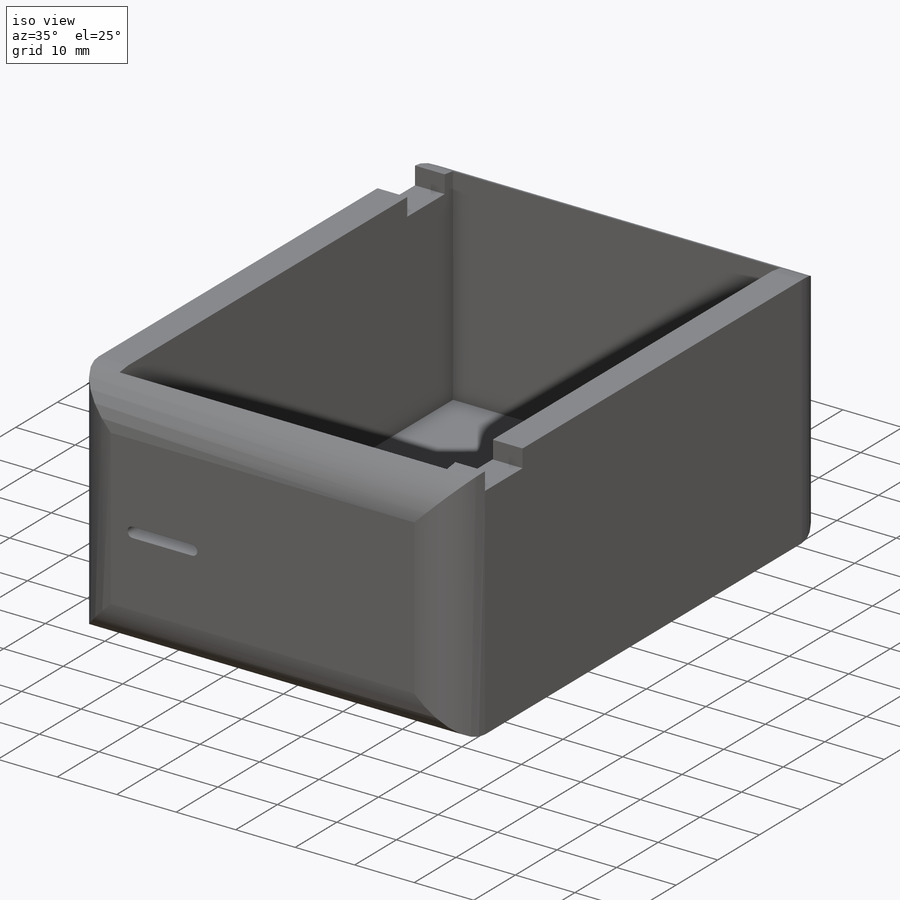
[diagram: iso view]
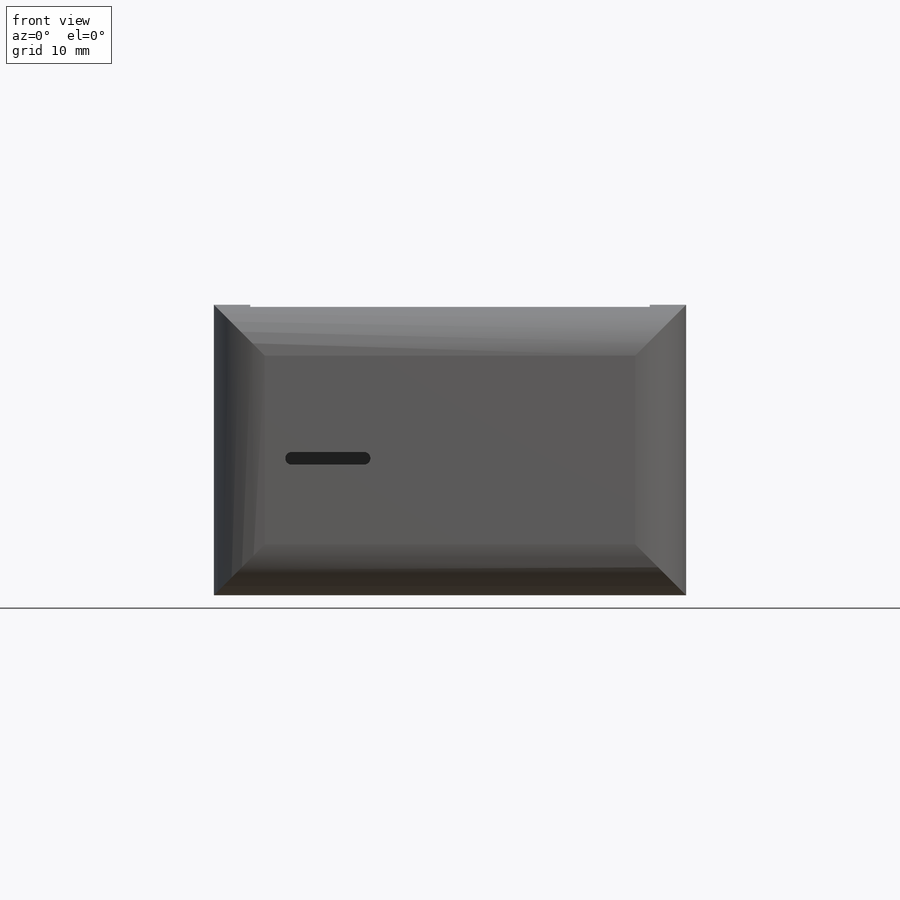
[diagram: front view]
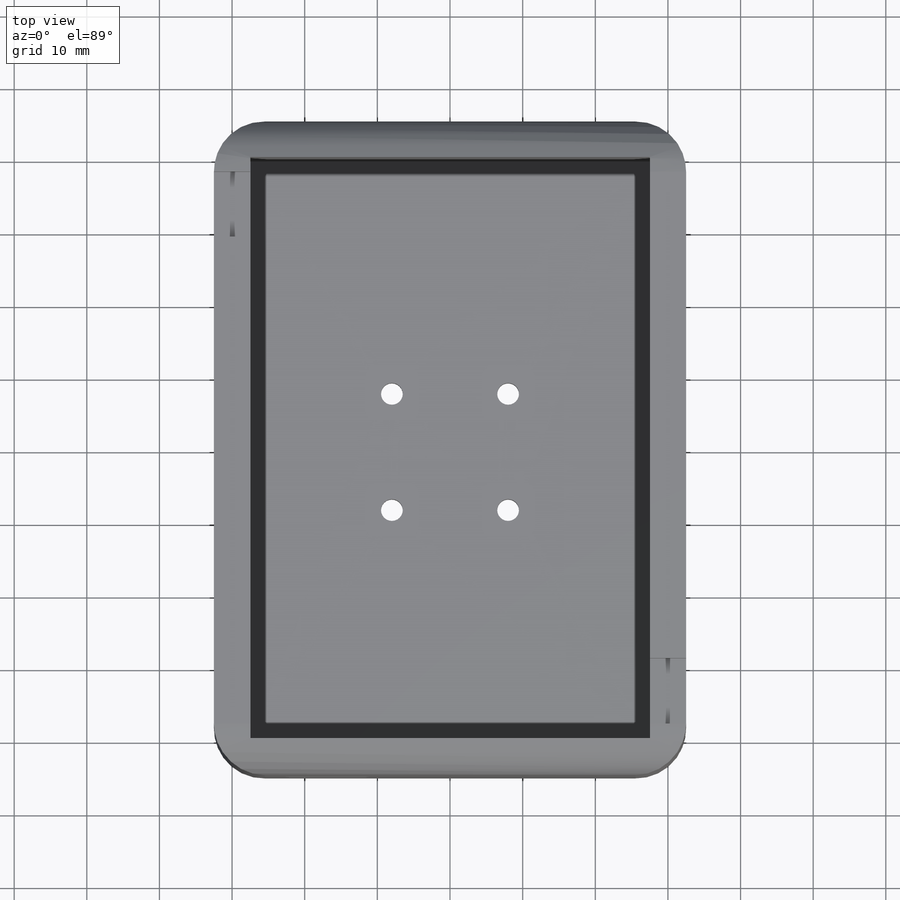
[diagram: top view]
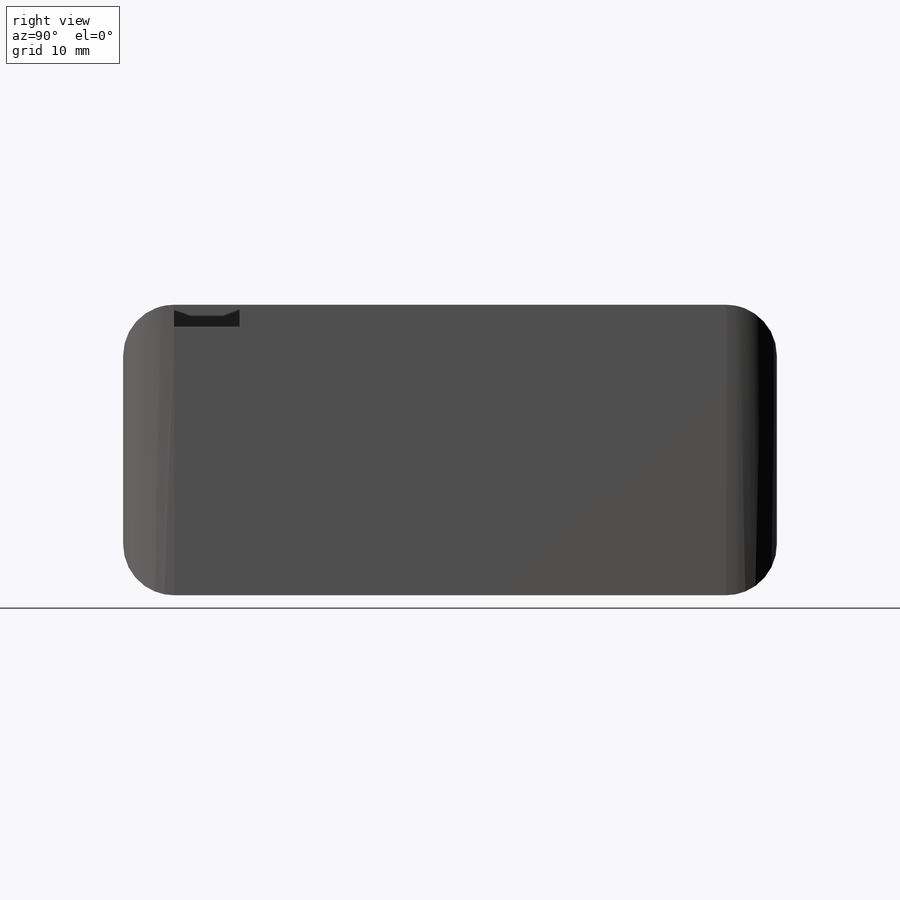
[diagram: right view]
SOLIDWORKS PART (.sldprt)
format: sldprt  version: not decoded by parser v0  size: 235,008 bytes
history: native  units: mm
features: sketch x5, cut_extrude x4, plane x3, material x1, extrude x1, shell x1, fillet x1 (+9 scaffold rows collapsed)
feature tree (25):
  scaffold x9  (default folders/planes/origin — collapsed)
  material  "Material <não especificado>"
  plane  "Plano frontal"
  plane  "Plano superior"
  plane  "Plano direito"
  sketch  "Esboço3"  dims[D1=65.0mm D2=90.0mm]
  extrude  "Ressalto-extrusão2"  Depth=40mm
  shell  "Casca2"  Thickness=5mm
  sketch  "Esboço4"  dims[D1=8.0mm D2=8.0mm]
  cut_extrude  "Corte-extrusão1"  Depth=40mm
  fillet  "Filete2"  Radius=7mm
  sketch  "Esboço5"  dims[D1=9.0mm]
  cut_extrude  "Corte-extrusão2"  Depth=3mm
  sketch  "Esboço7"  dims[D1=9.0mm]
  cut_extrude  "Corte-extrusão3"  Depth=3mm
  sketch  "Esboço8"  dims[D1=~1.725408mm]
  cut_extrude  "Corte-extrusão4"  [1 undecoded]
decode coverage: 11 of 12 modeling features carry decoded parameters
note: ~ marks probable driven/reference dimensions
note: 1 parameter value undecoded
note: suppression state not decoded; provenance and decode notes live in map.json
